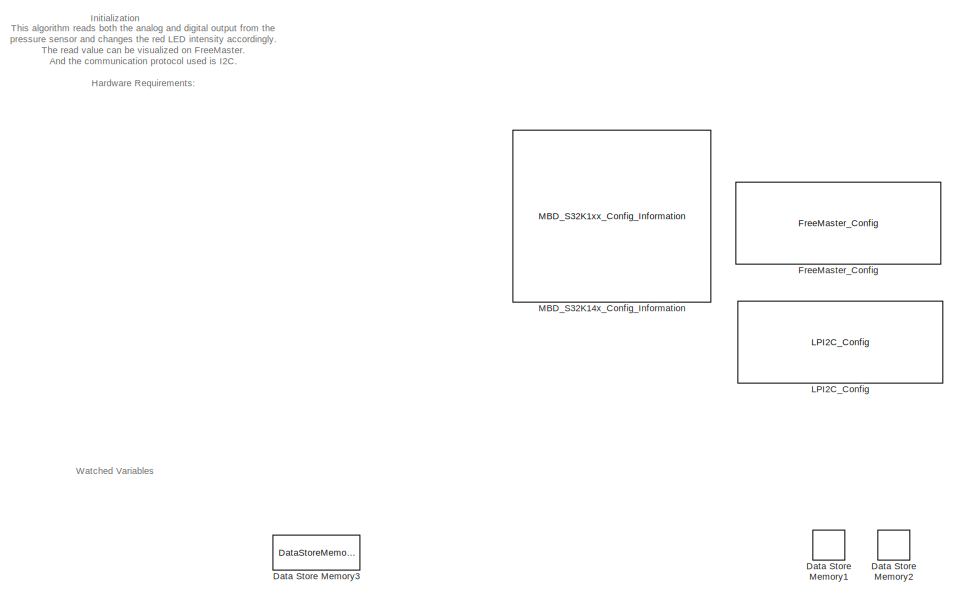
[diagram: root canvas - part 1/3, top center region]
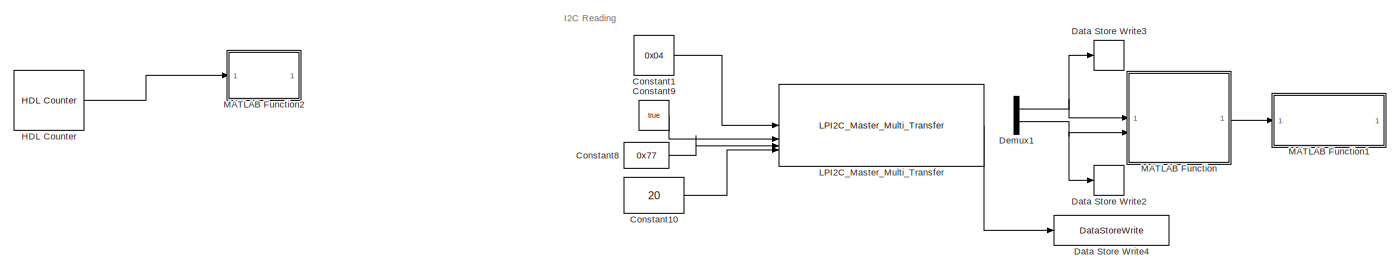
[diagram: root canvas - part 2/3, full width, middle band]
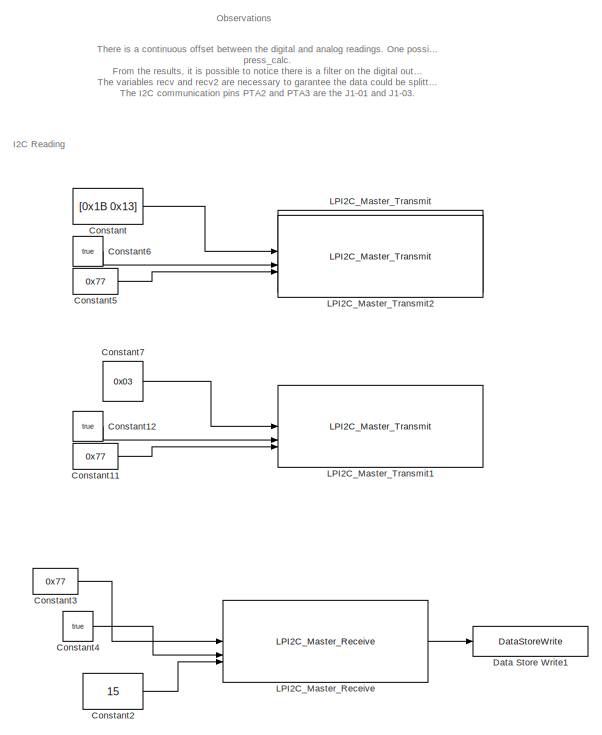
[diagram: root canvas - part 3/3, bottom center region]
MODEL slx_54bed78a4a70
KIND model
CONFIG AbsTol = auto
CONFIG EnableMultiTasking = on
CONFIG FixedStep = auto
CONFIG InitFcn = mbd_s32k_consistency_checks(bdroot(gcs));
CONFIG MaxStep = auto
CONFIG MinStep = auto
CONFIG RelTol = 1e-3
CONFIG SampleTimeConstraint = Unconstrained
CONFIG SolverName = FixedStepDiscrete
CONFIG StartTime = 0.0
CONFIG StopTime = inf
WORKSPACE source: mxarray member
WORKSPACE mwTaskManagerKernelLatency = 1e-06
BLOCK [Constant] Constant
  SampleTime = -1
  Value = [0x1B 0x13]
  VectorParams1D = off
BLOCK [Constant] Constant1
  SampleTime = -1
  Value = 0x04
  VectorParams1D = off
BLOCK [Constant] Constant10
  OutDataTypeStr = uint32
  Value = 20
BLOCK [Constant] Constant11
  Commented = on
  OutDataTypeStr = uint16
  Value = 0x77
BLOCK [Constant] Constant12
  Commented = on
  OutDataTypeStr = boolean
  Value = true
BLOCK [Constant] Constant2
  Commented = on
  OutDataTypeStr = uint32
  Value = 15
BLOCK [Constant] Constant3
  Commented = on
  OutDataTypeStr = uint16
  Value = 0x77
BLOCK [Constant] Constant4
  Commented = on
  OutDataTypeStr = boolean
  Value = true
BLOCK [Constant] Constant5
  OutDataTypeStr = uint16
  Value = 0x77
BLOCK [Constant] Constant6
  OutDataTypeStr = boolean
  Value = true
BLOCK [Constant] Constant7
  Commented = on
  SampleTime = -1
  Value = 0x03
  VectorParams1D = off
BLOCK [Constant] Constant8
  OutDataTypeStr = uint16
  Value = 0x77
BLOCK [Constant] Constant9
  OutDataTypeStr = boolean
  Value = true
BLOCK [DataStoreMemory] Data Store Memory1
  DataStoreName = recv
  OutDataTypeStr = uint8
  ReadBeforeWriteMsg = warning
  ShowAdditionalParam = off
  WriteAfterReadMsg = warning
  WriteAfterWriteMsg = warning
BLOCK [DataStoreMemory] Data Store Memory2
  DataStoreName = recv2
  OutDataTypeStr = uint8
  ReadBeforeWriteMsg = warning
  ShowAdditionalParam = off
  WriteAfterReadMsg = warning
  WriteAfterWriteMsg = warning
BLOCK [DataStoreMemory] Data Store Memory3
  DataStoreName = pressure_digital
  InitialValue = zeros(1, 7)
  ShowAdditionalParam = off
  StateMustResolveToSignalObject = on
  WriteAfterWriteMsg = warning
BLOCK [DataStoreWrite] Data Store Write1
  Commented = on
  DataStoreName = pressure_digital
  IndexOptions = Index vector (dialog)
  Indices = 1
  OutputSizes = 1
BLOCK [DataStoreWrite] Data Store Write2
  Commented = on
  DataStoreName = recv2
  IndexOptions = Index vector (dialog)
  Indices = 1
  OutputSizes = 1
BLOCK [DataStoreWrite] Data Store Write3
  Commented = on
  DataStoreName = recv
  IndexOptions = Index vector (dialog)
  Indices = 1
  OutputSizes = 1
BLOCK [DataStoreWrite] Data Store Write4
  DataStoreName = pressure_digital
  IndexOptions = Index vector (dialog)
  Indices = 1
  OutputSizes = 1
BLOCK [Demux] Demux1
  Commented = on
  Outputs = 2
BLOCK [Reference] FreeMaster_Config  REF=mbd_s32k1xx_ec_toolbox/Utility Blocks/FreeMaster_Config
  Commented = on
  SourceBlock = mbd_s32k1xx_ec_toolbox/Utility Blocks/FreeMaster_Config
  SourceType = fm_s32k_config
BLOCK [Reference] HDL Counter  REF=hdlsllib/Sources/HDL Counter
  Commented = on
  SourceBlock = hdlsllib/Sources/HDL Counter
  SourceType = HDL Counter
BLOCK [Reference] LPI2C_Config  REF=mbd_s32k1xx_ec_toolbox/Communication Blocks/I2C Blocks/LPI2C_Config
  Priority = 1
  SourceBlock = mbd_s32k1xx_ec_toolbox/Communication Blocks/I2C Blocks/LPI2C_Config
  SourceType = lpi2c_s32k_config
BLOCK [Reference] LPI2C_Master_Multi_Transfer  REF=mbd_s32k1xx_ec_toolbox/Communication Blocks/I2C Blocks/LPI2C_Master_Multi_Transfer
  Priority = 3
  SourceBlock = mbd_s32k1xx_ec_toolbox/Communication Blocks/I2C Blocks/LPI2C_Master_Multi_Transfer
  SourceType = lpi2c_s32k_master_multi_transfer
BLOCK [Reference] LPI2C_Master_Receive  REF=mbd_s32k1xx_ec_toolbox/Communication Blocks/I2C Blocks/LPI2C_Master_Receive
  Commented = on
  Priority = 4
  SourceBlock = mbd_s32k1xx_ec_toolbox/Communication Blocks/I2C Blocks/LPI2C_Master_Receive
  SourceType = lpi2c_s32k_master_receive
BLOCK [Reference] LPI2C_Master_Transmit  REF=mbd_s32k1xx_ec_toolbox/Communication Blocks/I2C Blocks/LPI2C_Master_Transmit
  Priority = 2
  SourceBlock = mbd_s32k1xx_ec_toolbox/Communication Blocks/I2C Blocks/LPI2C_Master_Transmit
  SourceType = lpi2c_s32k_master_transmit
BLOCK [Reference] LPI2C_Master_Transmit1  REF=mbd_s32k1xx_ec_toolbox/Communication Blocks/I2C Blocks/LPI2C_Master_Transmit
  Commented = on
  Priority = 3
  SourceBlock = mbd_s32k1xx_ec_toolbox/Communication Blocks/I2C Blocks/LPI2C_Master_Transmit
  SourceType = lpi2c_s32k_master_transmit
BLOCK [Reference] LPI2C_Master_Transmit2  REF=mbd_s32k1xx_ec_toolbox/Communication Blocks/I2C Blocks/LPI2C_Master_Transmit
  Priority = 2
  SourceBlock = mbd_s32k1xx_ec_toolbox/Communication Blocks/I2C Blocks/LPI2C_Master_Transmit
  SourceType = lpi2c_s32k_master_transmit
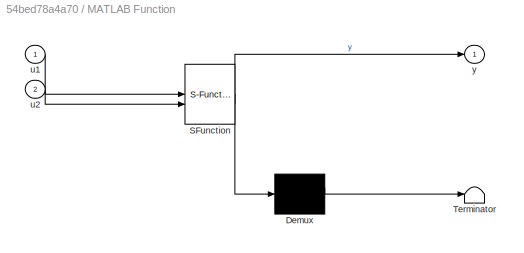
BLOCK [SubSystem] MATLAB Function
  Commented = on
  ErrorFcn = Stateflow.Translate.translate
  PermitHierarchicalResolution = ExplicitOnly
  SFBlockType = MATLAB Function
  TreatAsAtomicUnit = on
BLOCK [Demux] MATLAB Function/ Demux 
  Outputs = 1
BLOCK [S-Function] MATLAB Function/ SFunction 
  EnableBusSupport = on
  FunctionName = sf_sfun
  PortCounts = [2 2]
  SFcnIsStateOwnerBlock = off
  SFunctionDeploymentMode = off
  Tag = Stateflow S-Function 2
BLOCK [Terminator] MATLAB Function/ Terminator 
BLOCK [Inport] MATLAB Function/u1
BLOCK [Inport] MATLAB Function/u2
  Port = 2
BLOCK [Outport] MATLAB Function/y
  VectorParamsAs1DForOutWhenUnconnected = off
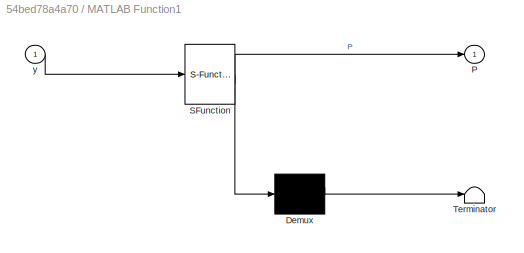
BLOCK [SubSystem] MATLAB Function1
  Commented = on
  ErrorFcn = Stateflow.Translate.translate
  PermitHierarchicalResolution = ExplicitOnly
  SFBlockType = MATLAB Function
  TreatAsAtomicUnit = on
BLOCK [Demux] MATLAB Function1/ Demux 
  Outputs = 1
BLOCK [S-Function] MATLAB Function1/ SFunction 
  EnableBusSupport = on
  FunctionName = sf_sfun
  PortCounts = [1 2]
  SFcnIsStateOwnerBlock = off
  SFunctionDeploymentMode = off
  Tag = Stateflow S-Function 1
BLOCK [Terminator] MATLAB Function1/ Terminator 
BLOCK [Outport] MATLAB Function1/P
  VectorParamsAs1DForOutWhenUnconnected = off
BLOCK [Inport] MATLAB Function1/y
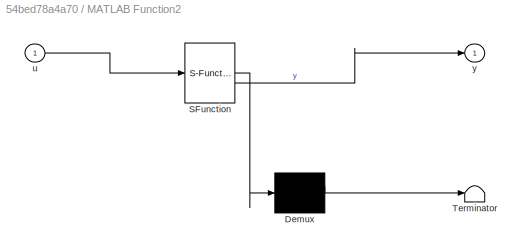
BLOCK [SubSystem] MATLAB Function2
  Commented = on
  ErrorFcn = Stateflow.Translate.translate
  LibrarySourceBlock = simulink/User-Defined\nFunctions/MATLAB Function
  PermitHierarchicalResolution = ExplicitOnly
  SFBlockType = MATLAB Function
  TreatAsAtomicUnit = on
BLOCK [Demux] MATLAB Function2/ Demux 
  Outputs = 1
BLOCK [S-Function] MATLAB Function2/ SFunction 
  EnableBusSupport = on
  FunctionName = sf_sfun
  PortCounts = [1 2]
  SFcnIsStateOwnerBlock = off
  SFunctionDeploymentMode = off
  Tag = Stateflow S-Function 3
BLOCK [Terminator] MATLAB Function2/ Terminator 
BLOCK [Inport] MATLAB Function2/u
BLOCK [Outport] MATLAB Function2/y
BLOCK [Reference] MBD_S32K14x_Config_Information  REF=mbd_s32k1xx_ec_toolbox/MBD_S32K1xx_Config_Information
  Priority = 0
  SourceBlock = mbd_s32k1xx_ec_toolbox/MBD_S32K1xx_Config_Information
  SourceType = MBDTBX_EC_S32K
ANNOTATION (root): I2C Reading
ANNOTATION (root): Initialization
ANNOTATION (root): Observations
ANNOTATION (root): There is a continuous offset between the digital and analog readings. One possible solution is to change the range [Out_max Out_min] on the functions press_calc. From the results, it is possible to notice there is a filter on the digital output, because it does not present many oscilations as the analog one. The variables recv and recv2 are necessary to garantee the data could be splitted in two b...<+71ch>
ANNOTATION (root): This algorithm reads both the analog and digital output from the pressure sensor and changes the red LED intensity accordingly. The read value can be visualized on FreeMaster. And the communication protocol used is I2C. Hardware Requirements: - S32K144EVB - HDIB002AUY8P5 Before running this, type on the Command Line: load 'Init_Pressure_Variables' Pin connections: Sensor | Board | Function 5 | 5V ...<+158ch>
ANNOTATION (root): Watched Variables
LINE Constant10:1 -> LPI2C_Master_Multi_Transfer:4
LINE Constant11:1 -> LPI2C_Master_Transmit1:3
LINE Constant12:1 -> LPI2C_Master_Transmit1:2
LINE Constant1:1 -> LPI2C_Master_Multi_Transfer:1
LINE Constant2:1 -> LPI2C_Master_Receive:3
LINE Constant3:1 -> LPI2C_Master_Receive:1
LINE Constant4:1 -> LPI2C_Master_Receive:2
LINE Constant5:1 -> LPI2C_Master_Transmit:3
LINE Constant6:1 -> LPI2C_Master_Transmit:2
LINE Constant7:1 -> LPI2C_Master_Transmit1:1
LINE Constant8:1 -> LPI2C_Master_Multi_Transfer:3
LINE Constant9:1 -> LPI2C_Master_Multi_Transfer:2
LINE Constant:1 -> LPI2C_Master_Transmit:1
NET Demux1:1 -> Data Store Write3:1, MATLAB Function:1
NET Demux1:2 -> Data Store Write2:1, MATLAB Function:2
LINE HDL Counter:1 -> MATLAB Function2:1
LINE LPI2C_Master_Multi_Transfer:1 -> Data Store Write4:1
LINE LPI2C_Master_Receive:1 -> Data Store Write1:1
LINE MATLAB Function:1 -> MATLAB Function1:1
note: NET lines group one-source signal fan-out (src -> all destinations, sorted); 1:1 wires keep LINE
CHART MATLAB Function1 states=1 transitions=1
  STATE_LABEL 'eML_blk_kernel()'
  STATE_LABEL 'SCRIPT:\nfunction P = press_calc_dig (y)\n% Calculate the corresponding pressure based on the digital reading\n\n\n%Pressure range\nPmax = 2000; %mbar\nPmin = 0;\n\n%Digital range\nOut_max_d = 29490;\nOut_min_d = 3277;\n\nS = (Out_max_d - Out_min_d)/(Pmax-Pmin);\nP = (y - Out_min_d)/S + Pmin;'
CHART MATLAB Function states=1 transitions=1
  STATE_LABEL 'eML_blk_kernel()'
  STATE_LABEL "SCRIPT:\nfunction y  = data_mask(u1, u2)\n\n\nu = [u1 u2];\n\nu_bin_mat = int2bit(u, 8);\nu_bin_vec = (reshape(u_bin_mat, 1, []))';\n\ny= bit2int(u_bin_vec, 16);\n\n"
CHART MATLAB Function2 states=1 transitions=1
  STATE_LABEL 'eML_blk_kernel()'
  STATE_LABEL 'SCRIPT:\nfunction y = fcn(u)\ny = 0x1B;\n\nif (u>1)\n    y = 0x03;\nend'
CHART  states=0 transitions=0
CHART  states=0 transitions=0
CHART  states=0 transitions=0
